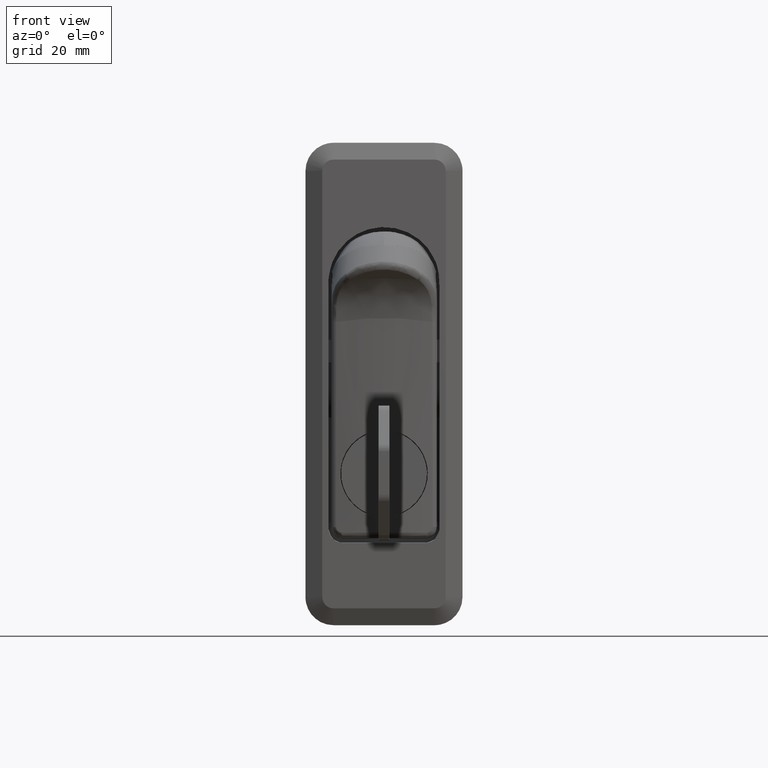
[diagram: clean part render]
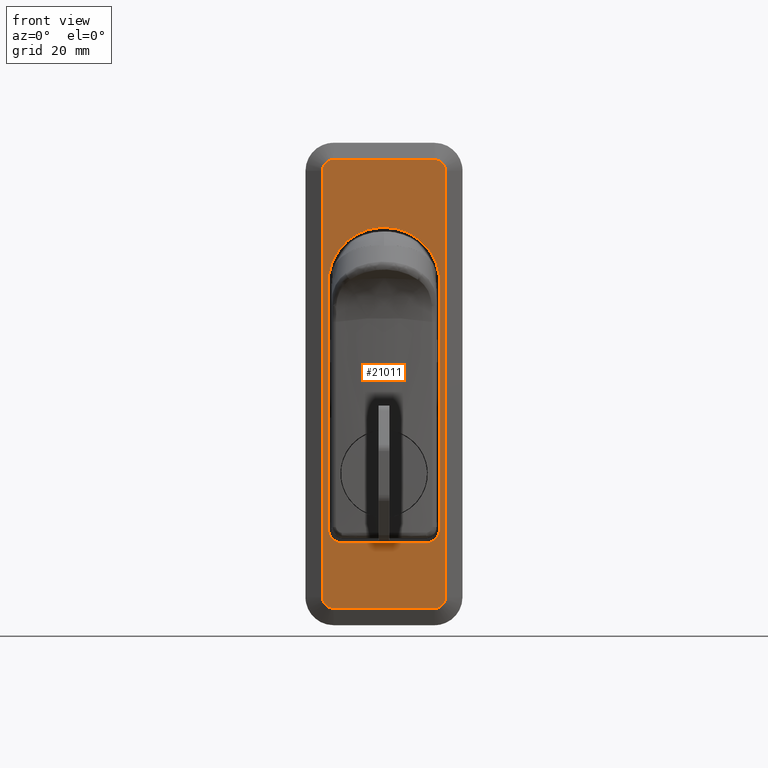
[diagram: same view with one face highlighted and labeled with its STEP entity id]
A machine part, front view. The second image highlights one B-rep face of the part: STEP entity #21011.
In plain terms, the highlighted face is a freeform B-spline surface patch.
Its self-contained STEP definition (entity closure, byte-faithful):
#14709=CARTESIAN_POINT('',(-2.999999999999914,6.532019941670750,7.505678882127560));
#14710=VERTEX_POINT('',#14709);
#14711=CARTESIAN_POINT('',(-2.999999999999915,9.900000000000000,-0.996242942257537));
#14712=VERTEX_POINT('',#14711);
#14713=CARTESIAN_POINT('',(-2.999999999999914,6.532019941670750,7.505678882127560));
#14714=CARTESIAN_POINT('',(-2.999999999999916,10.415455777388248,4.126013868495009));
#14715=CARTESIAN_POINT('',(-2.999999999999915,9.900000000000000,-0.996242942257537));
#14723=(BOUNDED_CURVE()B_SPLINE_CURVE(2,(#14713,#14714,#14715),.UNSPECIFIED.,.F.,.U.)B_SPLINE_CURVE_WITH_KNOTS((3,3),(0.715815837195781,1.0),.UNSPECIFIED.)CURVE()GEOMETRIC_REPRESENTATION_ITEM()RATIONAL_B_SPLINE_CURVE((0.961993601810028,0.871118889085292,1.0))REPRESENTATION_ITEM(''));
#14724=EDGE_CURVE('',#14710,#14712,#14723,.T.);
#14750=CARTESIAN_POINT('',(-2.999999999999915,-9.900000000000000,-0.996242942257537));
#14751=VERTEX_POINT('',#14750);
#14757=CARTESIAN_POINT('',(-2.999999999999915,-7.866967251687729,6.092070769510665));
#14758=VERTEX_POINT('',#14757);
#14759=CARTESIAN_POINT('',(-2.999999999999915,-9.900000000000000,-0.996242942257537));
#14760=CARTESIAN_POINT('',(-2.999999999999915,-10.297461334161515,2.953463541265195));
#14761=CARTESIAN_POINT('',(-2.999999999999915,-7.866967251687729,6.092070769510665));
#14769=(BOUNDED_CURVE()B_SPLINE_CURVE(2,(#14759,#14760,#14761),.UNSPECIFIED.,.F.,.U.)B_SPLINE_CURVE_WITH_KNOTS((3,3),(0.0,0.225792204121895),.UNSPECIFIED.)CURVE()GEOMETRIC_REPRESENTATION_ITEM()RATIONAL_B_SPLINE_CURVE((1.0,0.897600380626565,0.933926975810556))REPRESENTATION_ITEM(''));
#14770=EDGE_CURVE('',#14751,#14758,#14769,.T.);
#14843=CARTESIAN_POINT('',(-2.999999999999915,-7.866967251687729,6.092070769510665));
#14844=CARTESIAN_POINT('',(-2.999999999999915,-6.774626130811294,7.502660395075758));
#14845=CARTESIAN_POINT('',(-2.999999999999915,-5.260239756699732,8.445849732385462));
#14846=CARTESIAN_POINT('',(-2.999999999999914,2.602085E-015,11.722029533674592));
#14847=CARTESIAN_POINT('',(-2.999999999999915,5.260239756699734,8.445849732385460));
#14848=CARTESIAN_POINT('',(-2.999999999999915,5.933608723083496,8.026462421441764));
#14849=CARTESIAN_POINT('',(-2.999999999999914,6.532019941670750,7.505678882127560));
#14857=(BOUNDED_CURVE()B_SPLINE_CURVE(2,(#14843,#14844,#14845,#14846,#14847,#14848,#14849),.UNSPECIFIED.,.F.,.U.)B_SPLINE_CURVE_WITH_KNOTS((3,2,2,3),(0.225792204121895,0.333333333333333,0.666666666666667,0.715815837195781),.UNSPECIFIED.)CURVE()GEOMETRIC_REPRESENTATION_ITEM()RATIONAL_B_SPLINE_CURVE((0.933926975810556,0.951228738206144,1.0,0.848829118832710,1.0,0.977710229747417,0.961993601810028))REPRESENTATION_ITEM(''));
#14858=EDGE_CURVE('',#14758,#14710,#14857,.T.);
#15772=CARTESIAN_POINT('',(-2.999999999999915,7.400000000000000,-46.327637539594001));
#15773=VERTEX_POINT('',#15772);
#15774=CARTESIAN_POINT('',(-2.999999999999915,9.900000000000000,-43.817804600413297));
#15775=VERTEX_POINT('',#15774);
#15776=CARTESIAN_POINT('',(-2.999999999999915,7.400000000000000,-46.327637539594001));
#15777=CARTESIAN_POINT('',(-2.999999999999915,7.565398608508292,-46.327637539594008));
#15778=CARTESIAN_POINT('',(-2.999999999999916,7.728017094884752,-46.311324934454987));
#15779=CARTESIAN_POINT('',(-2.999999999999915,7.967946764949538,-46.263397069602973));
#15780=CARTESIAN_POINT('',(-2.999999999999914,8.047252004720759,-46.243482105043533));
#15781=CARTESIAN_POINT('',(-2.999999999999915,8.204489308591640,-46.195594949855249));
#15782=CARTESIAN_POINT('',(-2.999999999999915,8.282607949825529,-46.167496099634022));
#15783=CARTESIAN_POINT('',(-2.999999999999915,8.509787477345089,-46.072854102500763));
#15784=CARTESIAN_POINT('',(-2.999999999999915,8.653421752231411,-45.995650050868790));
#15785=CARTESIAN_POINT('',(-2.999999999999915,8.823284026544947,-45.881675824173037));
#15786=CARTESIAN_POINT('',(-2.999999999999914,8.856768088891712,-45.857999645536530));
#15787=CARTESIAN_POINT('',(-2.999999999999914,8.922743938085413,-45.808856668199432));
#15788=CARTESIAN_POINT('',(-2.999999999999915,8.955323852532896,-45.783315088074858));
#15789=CARTESIAN_POINT('',(-2.999999999999915,9.050778965375253,-45.704582101957783));
#15790=CARTESIAN_POINT('',(-2.999999999999915,9.111342671393302,-45.649352752321612));
#15791=CARTESIAN_POINT('',(-2.999999999999915,9.284103358622852,-45.475700083634663));
#15792=CARTESIAN_POINT('',(-2.999999999999916,9.387454227451082,-45.349387344349381));
#15793=CARTESIAN_POINT('',(-2.999999999999916,9.501516617182348,-45.178006096581740));
#15794=CARTESIAN_POINT('',(-2.999999999999915,9.523614344041031,-45.142961264496343));
#15795=CARTESIAN_POINT('',(-2.999999999999916,9.565832359981711,-45.072198185533523));
#15796=CARTESIAN_POINT('',(-2.999999999999915,9.585995107260217,-45.036425249861978));
#15797=CARTESIAN_POINT('',(-2.999999999999915,9.643696456793501,-44.927953717135772));
#15798=CARTESIAN_POINT('',(-2.999999999999915,9.713212976846080,-44.780256490139337));
#15799=CARTESIAN_POINT('',(-2.999999999999916,9.768113237973804,-44.626513626769878));
#15800=CARTESIAN_POINT('',(-2.999999999999915,9.803732081818540,-44.508908238363730));
#15801=CARTESIAN_POINT('',(-2.999999999999916,9.814677340802673,-44.469322727751660));
#15802=CARTESIAN_POINT('',(-2.999999999999915,9.834679282424043,-44.389370545909429));
#15803=CARTESIAN_POINT('',(-2.999999999999916,9.843740408702541,-44.348957696227302));
#15804=CARTESIAN_POINT('',(-2.999999999999915,9.883882306254657,-44.146750935031598));
#15805=CARTESIAN_POINT('',(-2.999999999999916,9.900000000000000,-43.983184926659654));
#15806=CARTESIAN_POINT('',(-2.999999999999915,9.900000000000000,-43.817804600413297));
#15807=B_SPLINE_CURVE_WITH_KNOTS('',3,(#15776,#15777,#15778,#15779,#15780,#15781,#15782,#15783,#15784,#15785,#15786,#15787,#15788,#15789,#15790,#15791,#15792,#15793,#15794,#15795,#15796,#15797,#15798,#15799,#15800,#15801,#15802,#15803,#15804,#15805,#15806),.UNSPECIFIED.,.F.,.U.,(4,2,2,2,2,2,2,2,2,2,2,1,2,2,2,4),(0.0,0.125000000000002,0.187500000000004,0.250000000000005,0.375000000000008,0.406250000000009,0.437500000000010,0.500000000000011,0.625000000000012,0.656250000000011,0.687500000000009,0.750000000000011,0.812500000000012,0.843750000000010,0.875000000000008,1.0),.UNSPECIFIED.);
#15808=EDGE_CURVE('',#15773,#15775,#15807,.T.);
#16029=CARTESIAN_POINT('',(-2.999999999999915,-9.900000000000000,-43.817804600413297));
#16030=VERTEX_POINT('',#16029);
#16031=CARTESIAN_POINT('',(-2.999999999999915,-7.400000000000000,-46.327637539594001));
#16032=VERTEX_POINT('',#16031);
#16033=CARTESIAN_POINT('',(-2.999999999999915,-9.900000000000000,-43.817804600413297));
#16034=CARTESIAN_POINT('',(-2.999999999999915,-9.899999999999999,-43.983195747316437));
#16035=CARTESIAN_POINT('',(-2.999999999999915,-9.883882087103794,-44.145844660824949));
#16036=CARTESIAN_POINT('',(-2.999999999999914,-9.836500441724992,-44.385870068831977));
#16037=CARTESIAN_POINT('',(-2.999999999999914,-9.816810533041048,-44.465215684663242));
#16038=CARTESIAN_POINT('',(-2.999999999999915,-9.769459957162097,-44.622550805251763));
#16039=CARTESIAN_POINT('',(-2.999999999999915,-9.741655498402581,-44.700786460453152));
#16040=CARTESIAN_POINT('',(-2.999999999999915,-9.647927606442941,-44.928447570896367));
#16041=CARTESIAN_POINT('',(-2.999999999999916,-9.571430579569542,-45.072455688453879));
#16042=CARTESIAN_POINT('',(-2.999999999999917,-9.435846811389146,-45.276918373652052));
#16043=CARTESIAN_POINT('',(-2.999999999999915,-9.387020418015920,-45.343297828067243));
#16044=CARTESIAN_POINT('',(-2.999999999999915,-9.282671660968786,-45.471321304399567));
#16045=CARTESIAN_POINT('',(-2.999999999999916,-9.227759479704414,-45.532250935870913));
#16046=CARTESIAN_POINT('',(-2.999999999999914,-9.055067353481489,-45.706083759964983));
#16047=CARTESIAN_POINT('',(-2.999999999999915,-8.929406999393960,-45.810115509304900));
#16048=CARTESIAN_POINT('',(-2.999999999999916,-8.758857904311888,-45.924987107398650));
#16049=CARTESIAN_POINT('',(-2.999999999999916,-8.723970496095083,-45.947253715929818));
#16050=CARTESIAN_POINT('',(-2.999999999999917,-8.653330553680723,-45.989906411938513));
#16051=CARTESIAN_POINT('',(-2.999999999999916,-8.617619668569200,-46.010275428628660));
#16052=CARTESIAN_POINT('',(-2.999999999999915,-8.509336389877440,-46.068564651657162));
#16053=CARTESIAN_POINT('',(-2.999999999999915,-8.361895804089778,-46.138782752381040));
#16054=CARTESIAN_POINT('',(-2.999999999999917,-8.208426757365947,-46.194237411931283));
#16055=CARTESIAN_POINT('',(-2.999999999999914,-8.091035118517720,-46.230220653253653));
#16056=CARTESIAN_POINT('',(-2.999999999999915,-8.051522255849278,-46.241278790666442));
#16057=CARTESIAN_POINT('',(-2.999999999999915,-7.971718491688177,-46.261489681923280));
#16058=CARTESIAN_POINT('',(-2.999999999999915,-7.931336433599575,-46.270658434545119));
#16059=CARTESIAN_POINT('',(-2.999999999999915,-7.729031325800056,-46.311320714284257));
#16060=CARTESIAN_POINT('',(-2.999999999999915,-7.565409982261047,-46.327637539593987));
#16061=CARTESIAN_POINT('',(-2.999999999999915,-7.400000000000000,-46.327637539594001));
#16062=B_SPLINE_CURVE_WITH_KNOTS('',3,(#16033,#16034,#16035,#16036,#16037,#16038,#16039,#16040,#16041,#16042,#16043,#16044,#16045,#16046,#16047,#16048,#16049,#16050,#16051,#16052,#16053,#16054,#16055,#16056,#16057,#16058,#16059,#16060,#16061),.UNSPECIFIED.,.F.,.U.,(4,2,2,2,2,2,2,2,2,2,1,2,2,2,4),(0.0,0.124999999999995,0.187499999999995,0.249999999999995,0.374999999999990,0.437499999999990,0.499999999999989,0.624999999999992,0.656249999999992,0.687499999999991,0.749999999999992,0.812499999999993,0.843749999999994,0.874999999999994,1.0),.UNSPECIFIED.);
#16063=EDGE_CURVE('',#16030,#16032,#16062,.T.);
#19199=CARTESIAN_POINT('',(-2.999999999999915,-11.0,20.0));
#19200=VERTEX_POINT('',#19199);
#19206=CARTESIAN_POINT('',(-2.999999999999915,-11.0,-56.0));
#19207=VERTEX_POINT('',#19206);
#19208=CARTESIAN_POINT('',(-2.999999999999915,-11.0,-56.0));
#19209=CARTESIAN_POINT('',(-2.999999999999915,-11.0,20.0));
#19210=QUASI_UNIFORM_CURVE('',1,(#19208,#19209),.UNSPECIFIED.,.F.,.U.);
#19211=EDGE_CURVE('',#19207,#19200,#19210,.T.);
#19242=CARTESIAN_POINT('',(-2.999999999999915,-9.0,-58.0));
#19243=VERTEX_POINT('',#19242);
#19265=CARTESIAN_POINT('',(-2.999999999999915,-9.0,-57.999999999999957));
#19266=CARTESIAN_POINT('',(-2.999999999999915,-10.999999999999956,-57.999999999999964));
#19267=CARTESIAN_POINT('',(-2.999999999999915,-10.999999999999950,-56.0));
#19275=(BOUNDED_CURVE()B_SPLINE_CURVE(2,(#19265,#19266,#19267),.UNSPECIFIED.,.F.,.U.)CURVE()GEOMETRIC_REPRESENTATION_ITEM()QUASI_UNIFORM_CURVE()RATIONAL_B_SPLINE_CURVE((1.0,0.707106781186548,1.0))REPRESENTATION_ITEM(''));
#19276=EDGE_CURVE('',#19243,#19207,#19275,.T.);
#19297=CARTESIAN_POINT('',(-2.999999999999915,-9.0,22.0));
#19298=VERTEX_POINT('',#19297);
#19304=CARTESIAN_POINT('',(-2.999999999999915,-11.0,20.0));
#19305=CARTESIAN_POINT('',(-2.999999999999915,-10.999999999999956,21.999999999999961));
#19306=CARTESIAN_POINT('',(-2.999999999999915,-9.0,21.999999999999961));
#19314=(BOUNDED_CURVE()B_SPLINE_CURVE(2,(#19304,#19305,#19306),.UNSPECIFIED.,.F.,.U.)CURVE()GEOMETRIC_REPRESENTATION_ITEM()QUASI_UNIFORM_CURVE()RATIONAL_B_SPLINE_CURVE((1.0,0.707106781186548,1.0))REPRESENTATION_ITEM(''));
#19315=EDGE_CURVE('',#19200,#19298,#19314,.T.);
#19339=CARTESIAN_POINT('',(-2.999999999999915,9.0,-58.0));
#19340=VERTEX_POINT('',#19339);
#19354=CARTESIAN_POINT('',(-2.999999999999915,9.0,-58.0));
#19355=CARTESIAN_POINT('',(-2.999999999999915,-9.0,-58.0));
#19356=QUASI_UNIFORM_CURVE('',1,(#19354,#19355),.UNSPECIFIED.,.F.,.U.);
#19357=EDGE_CURVE('',#19340,#19243,#19356,.T.);
#19369=CARTESIAN_POINT('',(-2.999999999999915,8.999999999999890,22.0));
#19370=VERTEX_POINT('',#19369);
#19376=CARTESIAN_POINT('',(-2.999999999999915,-9.0,22.0));
#19377=CARTESIAN_POINT('',(-2.999999999999915,8.999999999999890,22.0));
#19378=QUASI_UNIFORM_CURVE('',1,(#19376,#19377),.UNSPECIFIED.,.F.,.U.);
#19379=EDGE_CURVE('',#19298,#19370,#19378,.T.);
#19404=CARTESIAN_POINT('',(-2.999999999999915,11.0,-56.0));
#19405=VERTEX_POINT('',#19404);
#19427=CARTESIAN_POINT('',(-2.999999999999915,10.999999999999950,-56.0));
#19428=CARTESIAN_POINT('',(-2.999999999999915,10.999999999999956,-57.999999999999964));
#19429=CARTESIAN_POINT('',(-2.999999999999915,9.0,-57.999999999999957));
#19437=(BOUNDED_CURVE()B_SPLINE_CURVE(2,(#19427,#19428,#19429),.UNSPECIFIED.,.F.,.U.)CURVE()GEOMETRIC_REPRESENTATION_ITEM()QUASI_UNIFORM_CURVE()RATIONAL_B_SPLINE_CURVE((1.0,0.707106781186548,1.0))REPRESENTATION_ITEM(''));
#19438=EDGE_CURVE('',#19405,#19340,#19437,.T.);
#19459=CARTESIAN_POINT('',(-2.999999999999915,10.999999999999840,20.0));
#19460=VERTEX_POINT('',#19459);
#19466=CARTESIAN_POINT('',(-2.999999999999915,8.999999999999890,22.0));
#19467=CARTESIAN_POINT('',(-2.999999999999915,10.999999999999840,21.999999999999950));
#19468=CARTESIAN_POINT('',(-2.999999999999915,10.999999999999840,20.0));
#19476=(BOUNDED_CURVE()B_SPLINE_CURVE(2,(#19466,#19467,#19468),.UNSPECIFIED.,.F.,.U.)CURVE()GEOMETRIC_REPRESENTATION_ITEM()QUASI_UNIFORM_CURVE()RATIONAL_B_SPLINE_CURVE((1.0,0.707106781186547,1.0))REPRESENTATION_ITEM(''));
#19477=EDGE_CURVE('',#19370,#19460,#19476,.T.);
#19502=CARTESIAN_POINT('',(-2.999999999999915,10.999999999999840,20.0));
#19503=CARTESIAN_POINT('',(-2.999999999999915,11.0,-56.0));
#19504=QUASI_UNIFORM_CURVE('',1,(#19502,#19503),.UNSPECIFIED.,.F.,.U.);
#19505=EDGE_CURVE('',#19460,#19405,#19504,.T.);
#19627=CARTESIAN_POINT('',(-2.999999999999915,-9.900000000000000,-0.996242942257537));
#19628=CARTESIAN_POINT('',(-2.999999999999915,-9.900000000000000,-43.817804600413297));
#19629=QUASI_UNIFORM_CURVE('',1,(#19627,#19628),.UNSPECIFIED.,.F.,.U.);
#19630=EDGE_CURVE('',#14751,#16030,#19629,.T.);
#19719=CARTESIAN_POINT('',(-2.999999999999915,9.900000000000000,-0.996242942257537));
#19720=CARTESIAN_POINT('',(-2.999999999999915,9.900000000000000,-43.817804600413297));
#19721=QUASI_UNIFORM_CURVE('',1,(#19719,#19720),.UNSPECIFIED.,.F.,.U.);
#19722=EDGE_CURVE('',#14712,#15775,#19721,.T.);
#19899=CARTESIAN_POINT('',(-2.999999999999915,7.400000000000000,-46.327637539594001));
#19900=CARTESIAN_POINT('',(-2.999999999999915,-7.400000000000000,-46.327637539594001));
#19901=QUASI_UNIFORM_CURVE('',1,(#19899,#19900),.UNSPECIFIED.,.F.,.U.);
#19902=EDGE_CURVE('',#15773,#16032,#19901,.T.);
#20986=CARTESIAN_POINT('',(-2.999999999999915,-12.098899957359730,25.995999844944478));
#20987=CARTESIAN_POINT('',(-2.999999999999915,12.098900547445711,25.995999844944478));
#20988=CARTESIAN_POINT('',(-2.999999999999915,-12.098899957359730,-61.996001990711690));
#20989=CARTESIAN_POINT('',(-2.999999999999915,12.098900547445711,-61.996001990711690));
#20990=B_SPLINE_SURFACE_WITH_KNOTS('',1,1,((#20986,#20988),(#20987,#20989)),.UNSPECIFIED.,.F.,.F.,.U.,(2,2),(2,2),(0.0,24.197800504805450),(0.0,87.992001835656168),.UNSPECIFIED.);
#20991=ORIENTED_EDGE('',*,*,#19276,.T.);
#20992=ORIENTED_EDGE('',*,*,#19211,.T.);
#20993=ORIENTED_EDGE('',*,*,#19315,.T.);
#20994=ORIENTED_EDGE('',*,*,#19379,.T.);
#20995=ORIENTED_EDGE('',*,*,#19477,.T.);
#20996=ORIENTED_EDGE('',*,*,#19505,.T.);
#20997=ORIENTED_EDGE('',*,*,#19438,.T.);
#20998=ORIENTED_EDGE('',*,*,#19357,.T.);
#20999=EDGE_LOOP('',(#20991,#20992,#20993,#20994,#20995,#20996,#20997,#20998));
#21000=FACE_OUTER_BOUND('',#20999,.T.);
#21001=ORIENTED_EDGE('',*,*,#19722,.F.);
#21002=ORIENTED_EDGE('',*,*,#14724,.F.);
#21003=ORIENTED_EDGE('',*,*,#14858,.F.);
#21004=ORIENTED_EDGE('',*,*,#14770,.F.);
#21005=ORIENTED_EDGE('',*,*,#19630,.T.);
#21006=ORIENTED_EDGE('',*,*,#16063,.T.);
#21007=ORIENTED_EDGE('',*,*,#19902,.F.);
#21008=ORIENTED_EDGE('',*,*,#15808,.T.);
#21009=EDGE_LOOP('',(#21001,#21002,#21003,#21004,#21005,#21006,#21007,#21008));
#21010=FACE_BOUND('',#21009,.T.);
#21011=ADVANCED_FACE('',(#21000,#21010),#20990,.T.);